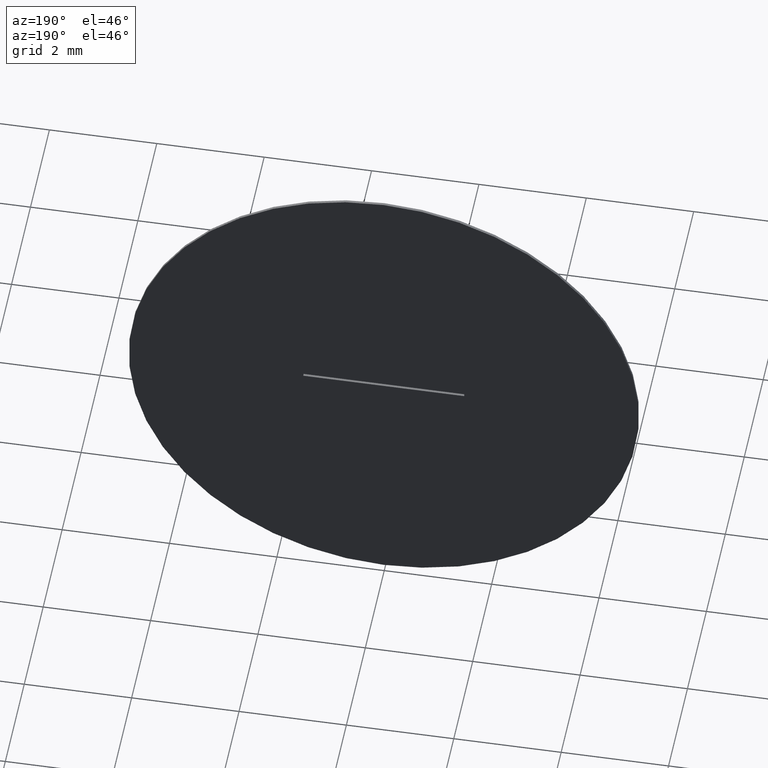
[diagram: clean part render]
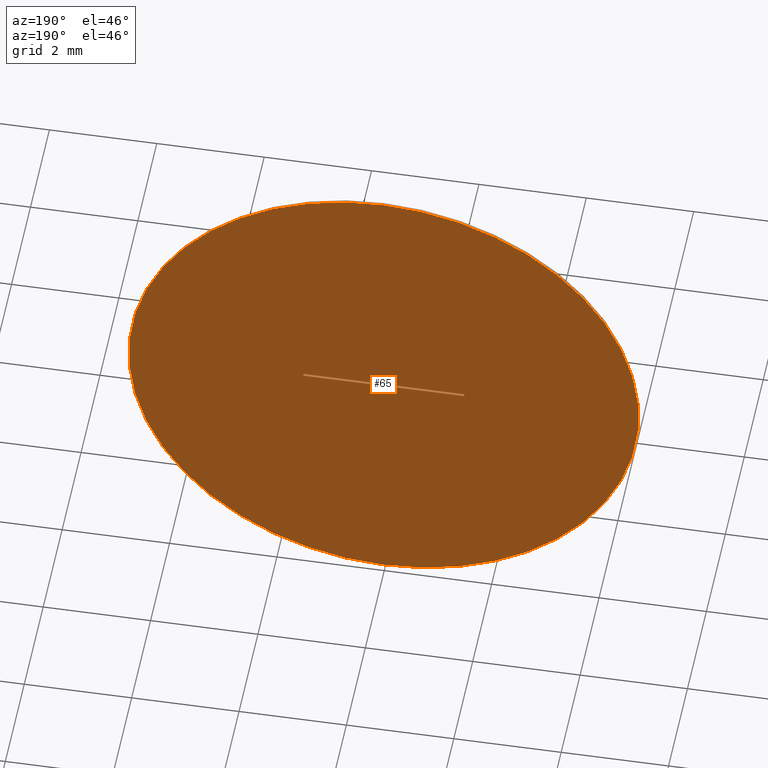
[diagram: same view with one face highlighted and labeled with its STEP entity id]
A machine part, auxiliary view. The second image highlights one B-rep face of the part: STEP entity #65.
In plain terms, the highlighted planar face has unit normal (0, 1, 0).
Its self-contained STEP definition (entity closure, byte-faithful):
#4 = DIRECTION ( 'NONE',  ( 0.000000000000000000, 0.000000000000000000, 1.000000000000000000 ) ) ;
#7 = CARTESIAN_POINT ( 'NONE',  ( 0.000000000000000000, 0.05000000000000000278, 0.000000000000000000 ) ) ;
#8 = EDGE_CURVE ( 'NONE', #161, #180, #286, .T. ) ;
#9 = CARTESIAN_POINT ( 'NONE',  ( 0.000000000000000000, 0.05000000000000000278, 0.000000000000000000 ) ) ;
#31 = DIRECTION ( 'NONE',  ( 0.000000000000000000, 1.000000000000000000, 0.000000000000000000 ) ) ;
#32 = CARTESIAN_POINT ( 'NONE',  ( -1.500000000000000000, 0.05000000000000000278, 0.02500000000000000486 ) ) ;
#52 = EDGE_CURVE ( 'NONE', #180, #161, #123, .T. ) ;
#55 = PLANE ( 'NONE',  #182 ) ;
#65 = ADVANCED_FACE ( 'NONE', ( #73, #238 ), #55, .T. ) ;
#67 = VERTEX_POINT ( 'NONE', #164 ) ;
#73 = FACE_OUTER_BOUND ( 'NONE', #205, .T. ) ;
#75 = EDGE_CURVE ( 'NONE', #67, #133, #168, .T. ) ;
#77 = DIRECTION ( 'NONE',  ( -1.000000000000000000, -0.000000000000000000, -0.000000000000000000 ) ) ;
#78 = CARTESIAN_POINT ( 'NONE',  ( 0.000000000000000000, 0.05000000000000000278, 0.000000000000000000 ) ) ;
#81 = VECTOR ( 'NONE', #261, 1000.000000000000000 ) ;
#90 = ORIENTED_EDGE ( 'NONE', *, *, #116, .F. ) ;
#91 = ORIENTED_EDGE ( 'NONE', *, *, #75, .F. ) ;
#94 = CARTESIAN_POINT ( 'NONE',  ( -1.500000000000000000, 0.05000000000000000278, -0.02499999999999999792 ) ) ;
#108 = ORIENTED_EDGE ( 'NONE', *, *, #8, .T. ) ;
#110 = VECTOR ( 'NONE', #243, 1000.000000000000000 ) ;
#116 = EDGE_CURVE ( 'NONE', #203, #250, #144, .T. ) ;
#120 = DIRECTION ( 'NONE',  ( 0.000000000000000000, 1.000000000000000000, 0.000000000000000000 ) ) ;
#123 = CIRCLE ( 'NONE', #149, 4.750000000000000000 ) ;
#133 = VERTEX_POINT ( 'NONE', #295 ) ;
#144 = LINE ( 'NONE', #146, #264 ) ;
#146 = CARTESIAN_POINT ( 'NONE',  ( -1.500000000000000000, 0.05000000000000000278, -0.02499999999999999792 ) ) ;
#149 = AXIS2_PLACEMENT_3D ( 'NONE', #78, #31, #4 ) ;
#151 = CARTESIAN_POINT ( 'NONE',  ( -1.500000000000000000, 0.05000000000000000278, -0.02499999999999999792 ) ) ;
#161 = VERTEX_POINT ( 'NONE', #169 ) ;
#164 = CARTESIAN_POINT ( 'NONE',  ( -1.500000000000000000, 0.05000000000000000278, 0.02500000000000000486 ) ) ;
#166 = EDGE_CURVE ( 'NONE', #133, #203, #268, .T. ) ;
#168 = LINE ( 'NONE', #32, #81 ) ;
#169 = CARTESIAN_POINT ( 'NONE',  ( 5.817072295949927426E-16, 0.05000000000000000278, 4.750000000000000000 ) ) ;
#180 = VERTEX_POINT ( 'NONE', #210 ) ;
#182 = AXIS2_PLACEMENT_3D ( 'NONE', #9, #120, #292 ) ;
#185 = LINE ( 'NONE', #94, #273 ) ;
#186 = DIRECTION ( 'NONE',  ( 0.000000000000000000, 0.000000000000000000, 1.000000000000000000 ) ) ;
#188 = EDGE_CURVE ( 'NONE', #250, #67, #185, .T. ) ;
#200 = ORIENTED_EDGE ( 'NONE', *, *, #166, .F. ) ;
#203 = VERTEX_POINT ( 'NONE', #297 ) ;
#205 = EDGE_LOOP ( 'NONE', ( #304, #108 ) ) ;
#210 = CARTESIAN_POINT ( 'NONE',  ( 0.000000000000000000, 0.05000000000000000278, -4.750000000000000000 ) ) ;
#225 = ORIENTED_EDGE ( 'NONE', *, *, #188, .F. ) ;
#235 = DIRECTION ( 'NONE',  ( 0.000000000000000000, 0.000000000000000000, 1.000000000000000000 ) ) ;
#237 = DIRECTION ( 'NONE',  ( 0.000000000000000000, 1.000000000000000000, 0.000000000000000000 ) ) ;
#238 = FACE_BOUND ( 'NONE', #255, .T. ) ;
#243 = DIRECTION ( 'NONE',  ( -0.000000000000000000, -0.000000000000000000, -1.000000000000000000 ) ) ;
#250 = VERTEX_POINT ( 'NONE', #151 ) ;
#255 = EDGE_LOOP ( 'NONE', ( #90, #200, #91, #225 ) ) ;
#261 = DIRECTION ( 'NONE',  ( 1.000000000000000000, 0.000000000000000000, 0.000000000000000000 ) ) ;
#264 = VECTOR ( 'NONE', #77, 1000.000000000000000 ) ;
#265 = CARTESIAN_POINT ( 'NONE',  ( 1.500000000000000000, 0.05000000000000000278, -0.02499999999999999792 ) ) ;
#268 = LINE ( 'NONE', #265, #110 ) ;
#273 = VECTOR ( 'NONE', #235, 1000.000000000000000 ) ;
#286 = CIRCLE ( 'NONE', #306, 4.750000000000000000 ) ;
#292 = DIRECTION ( 'NONE',  ( 0.000000000000000000, -0.000000000000000000, 1.000000000000000000 ) ) ;
#295 = CARTESIAN_POINT ( 'NONE',  ( 1.500000000000000000, 0.05000000000000000278, 0.02500000000000000486 ) ) ;
#297 = CARTESIAN_POINT ( 'NONE',  ( 1.500000000000000000, 0.05000000000000000278, -0.02499999999999999792 ) ) ;
#304 = ORIENTED_EDGE ( 'NONE', *, *, #52, .T. ) ;
#306 = AXIS2_PLACEMENT_3D ( 'NONE', #7, #237, #186 ) ;